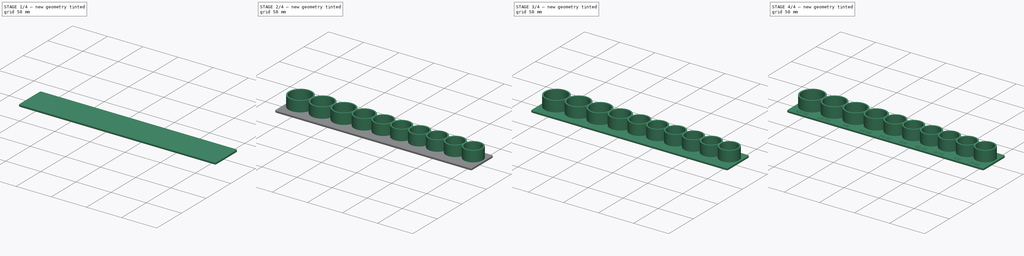
[diagram: build sequence overview — one tinted view per stage of 4, left to right]
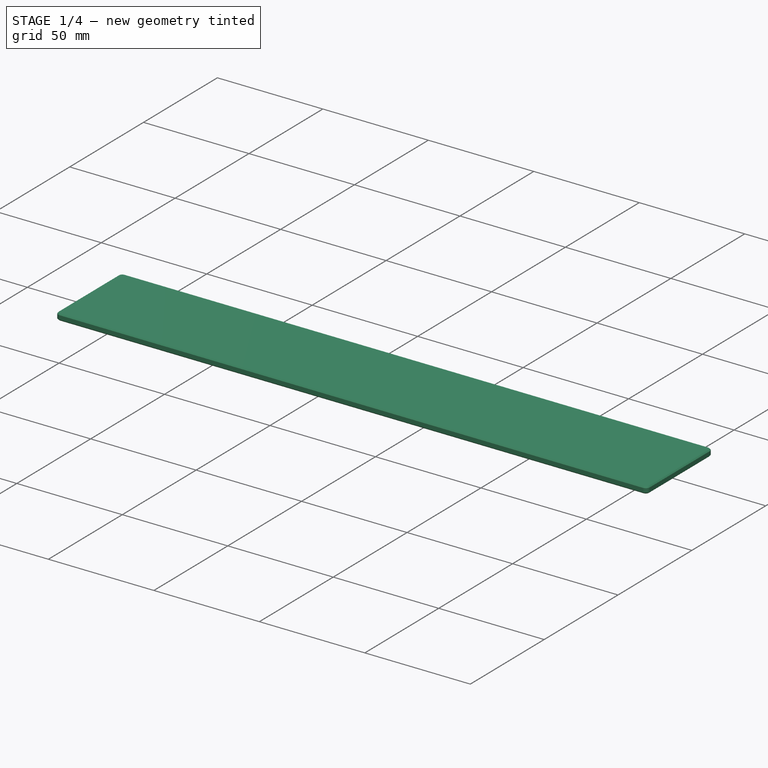
[diagram: stage 1 of 4 — iso view after this stage's code; geometry added in this stage tinted green]
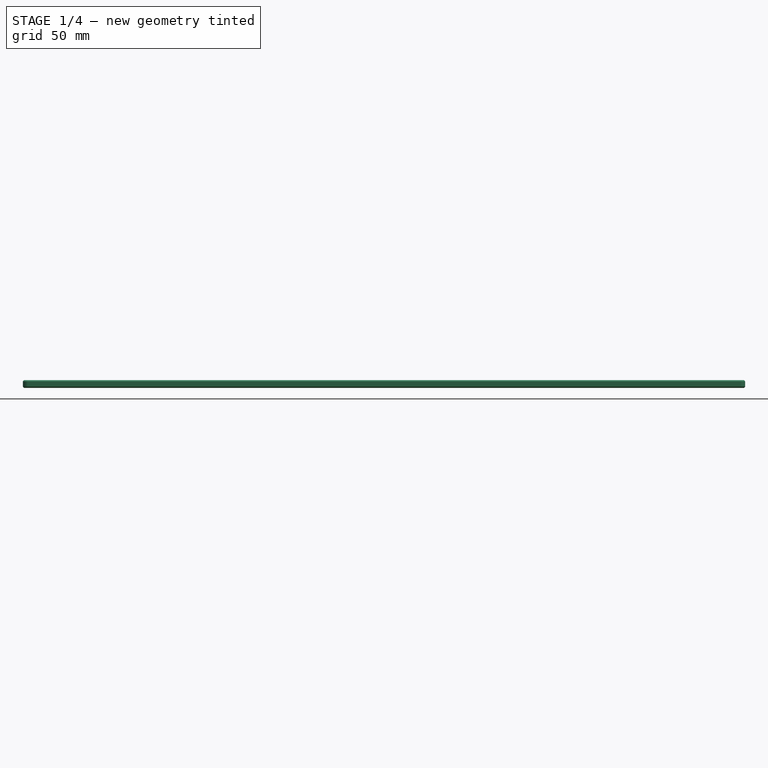
[diagram: stage 1 of 4 — front view after this stage's code; geometry added in this stage tinted green]
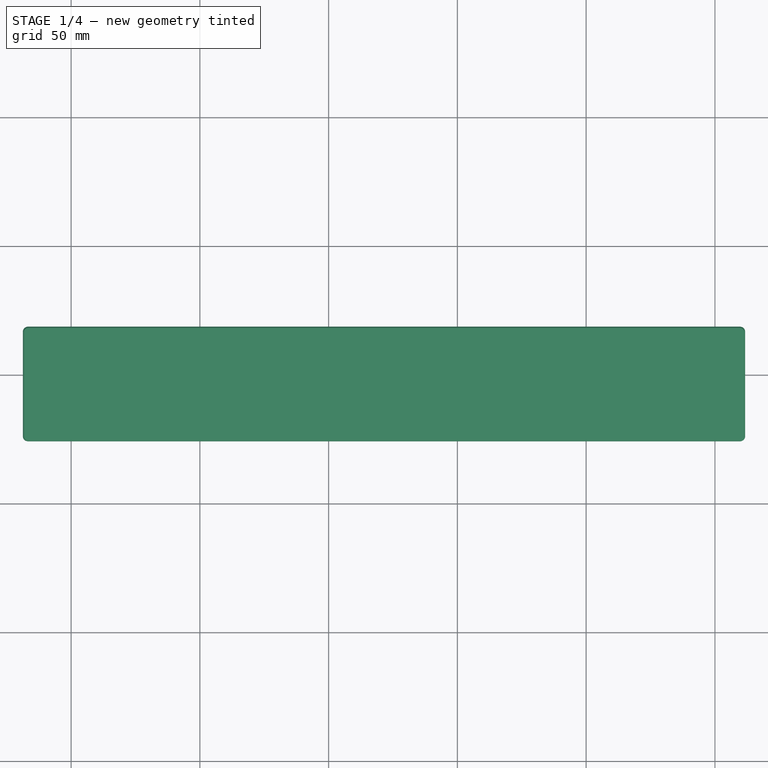
[diagram: stage 1 of 4 — top view after this stage's code; geometry added in this stage tinted green]
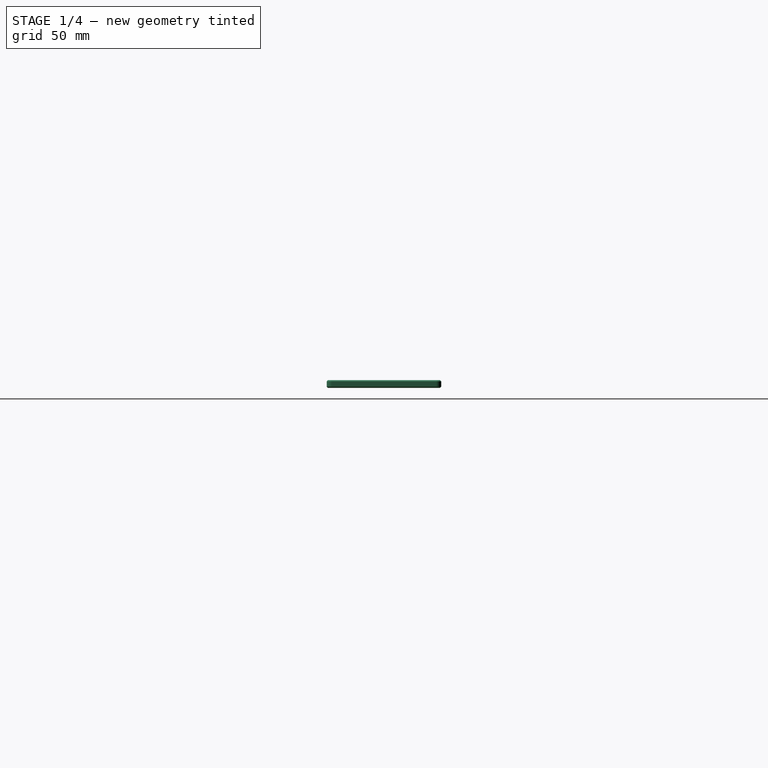
[diagram: stage 1 of 4 — right view after this stage's code; geometry added in this stage tinted green]
FCSTD DOCUMENT  (FreeCAD 0.22R38314 (Git))
Label: test
License: All rights reserved
LicenseURL: http://en.wikipedia.org/wiki/All_rights_reserved
objects: Part::Extrusion×3, Part::FeaturePython×3, Sketcher::SketchObject×2, Spreadsheet::Sheet×1, Part::Part2DObjectPython×1, Part::Chamfer×1, Part::MultiFuse×1, Part::Cut×1
note: 12 computed .brp shape members not serialized (recipe doc carries the construction recipe); baked Part::Feature solids carry a one-line shape summary decoded from their .brp

FEATURE [Part::Extrusion] Extrude003
  Base = -> Sketch001
  Dir = (0,0,1)
  DirMode = 2
  FaceMakerClass = Part::FaceMakerBullseye
  FaceMakerMode = 3
  LengthFwd = 3
  LengthRev = 0
  Reversed = true
  Solid = true
  Symmetric = false
  expr: LengthFwd = <<q>>.base_thickness
FEATURE [Part::Chamfer] Chamfer
  Base = -> Extrude003
  EdgeLinks = -> Extrude003 [Edge3,Edge4,Edge6,Edge7,Edge9,Edge10,Edge12,Edge13,Edge15,Edge16,Edge18,Edge19,Edge21,Edge22,Edge23,Edge24]
  Edges = 16 edges r=0.5: [Edge3,Edge4,Edge6,Edge7,Edge9,Edge10,Edge12,Edge13,Edge15,Edge16,Edge18,Edge19,Edge21,Edge22,Edge23,Edge24]
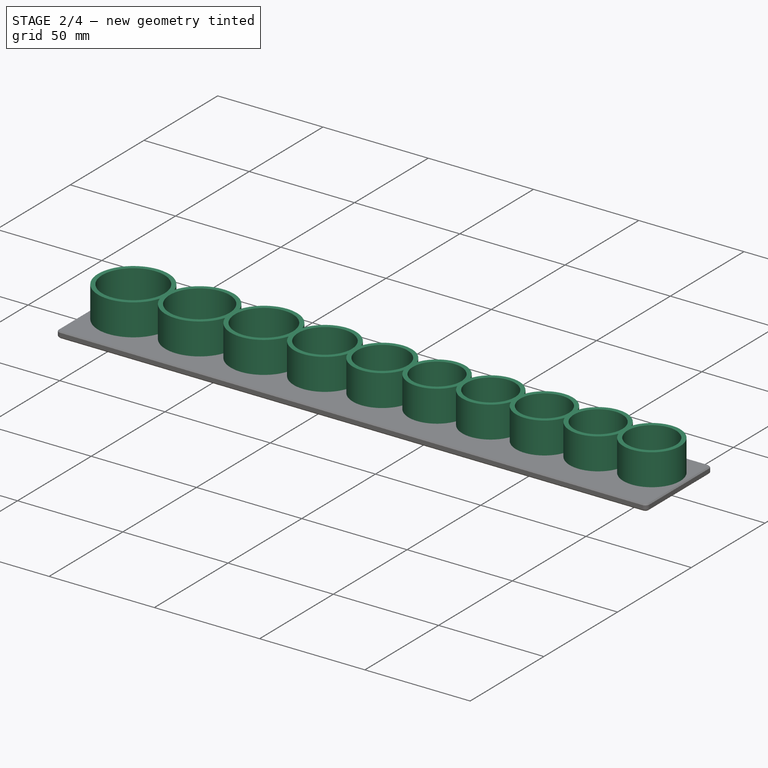
[diagram: stage 2 of 4 — iso view after this stage's code; geometry added in this stage tinted green]
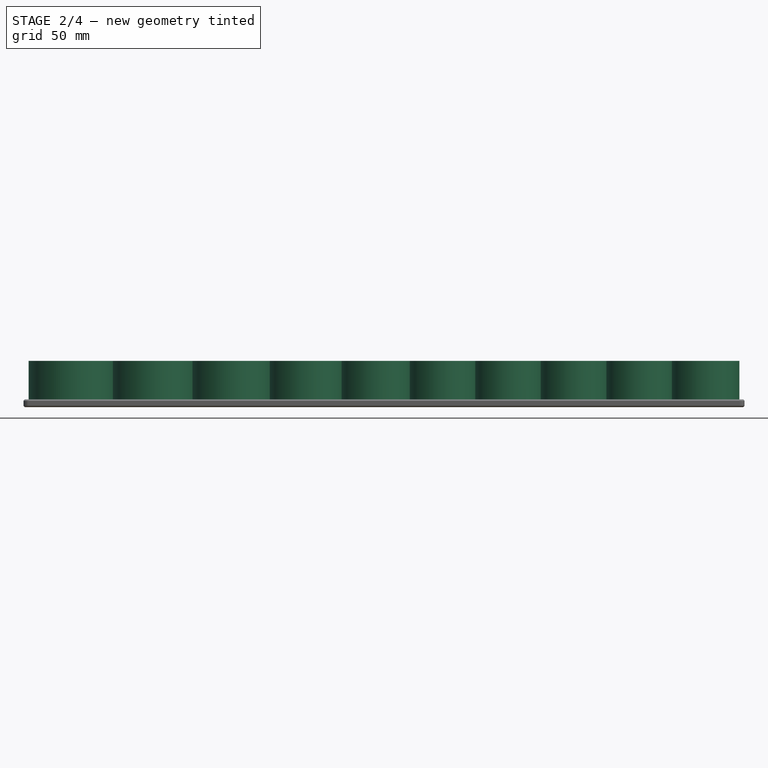
[diagram: stage 2 of 4 — front view after this stage's code; geometry added in this stage tinted green]
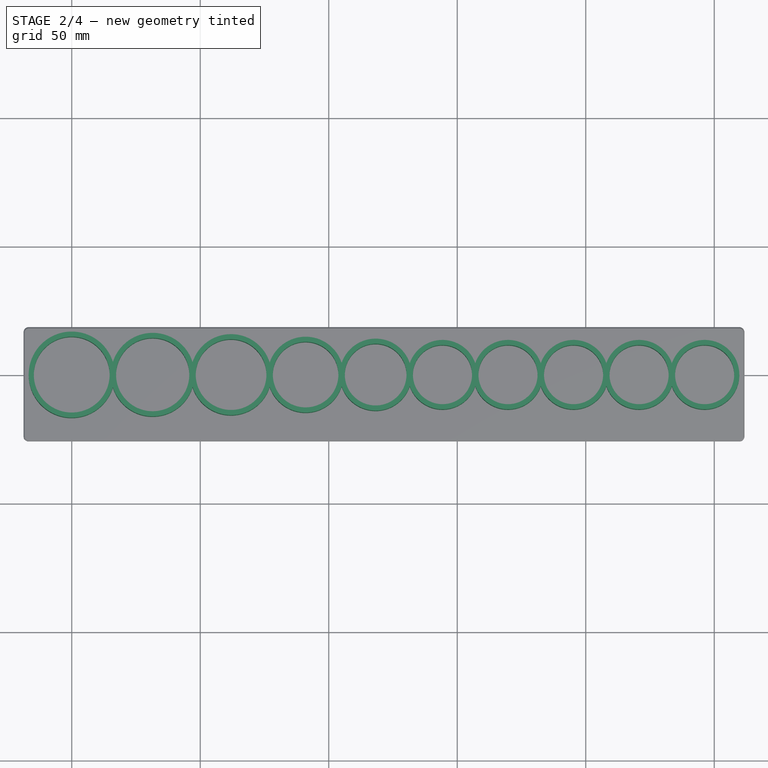
[diagram: stage 2 of 4 — top view after this stage's code; geometry added in this stage tinted green]
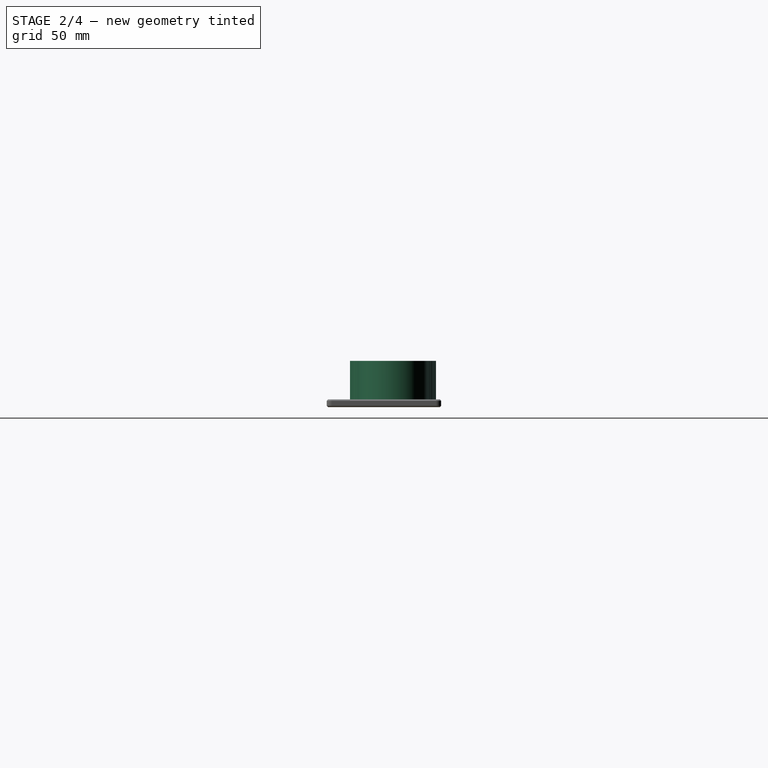
[diagram: stage 2 of 4 — right view after this stage's code; geometry added in this stage tinted green]
FEATURE [Spreadsheet::Sheet] Spreadsheet  label="q"
  cells = A1='socket diameter; B1='socket text; D1='socket para data; E1='text para data; G1='id; H1='od; I1='offset; A2=28.5; B2='13/16; D2==sum(A2:A2) > 0 ? <<%s;>> % I2 + <<%s;>> % G2 + <<%s>> % H2 : <<>>; E2==sum(A2:A2) > 0 ? <<%s;>> % I2 + <<%s>> % B2 : <<>>; G2==sum(A2:A2) > 0 ? A2 + socket_padding : 0; H2==sum(A2:A2) > 0 ? G2 + 2 * socket_wall : 0; I2=0; K2='socket wall; L2(socket_wall)=2; A3=27.5; B3='25/32; D3==sum(A3:A3) > 0 ? <<%s;>> % I3 + <<%s;>> % G3 + <<%s>> % H3 : <<>>; E3==sum(A3:A3) > 0 ? <<%s;>> % I3 + <<%s>> % B3 : <<>>; G3==sum(A3:A3) > 0 ? A3 + socket_padding : 0; H3==sum(A3:A3) > 0 ? G3 + 2 * socket_wall : 0; I3==sum(A3:A3) > 0 ? H2 / 2 + H3 / 2 + socket_spacing + I2 : 0; K3='socket height; L3(socket_height)=15; A4=26.5; B4='3/4; D4==sum(A4:A4) > 0 ? <<%s;>> % I4 + <<%s;>> % G4 + <<%s>> % H4 : <<>>; E4==sum(A4:A4) > 0 ? <<%s;>> % I4 + <<%s>> % B4 : <<>>; G4==sum(A4:A4) > 0 ? A4 + socket_padding : 0; H4==sum(A4:A4) > 0 ? G4 + 2 * socket_wall : 0; I4==sum(A4:A4) > 0 ? H3 / 2 + H4 / 2 + socket_spacing + I3 : 0; K4='socket padding; L4(socket_padding)=1; A5=24.5; B5='11/16; D5==sum(A5:A5) > 0 ? <<%s;>> % I5 + <<%s;>> % G5 + <<%s>> % H5 : <<>>; E5==sum(A5:A5) > 0 ? <<%s;>> % I5 + <<%s>> % B5 : <<>>; G5==sum(A5:A5) > 0 ? A5 + socket_padding : 0; H5==sum(A5:A5) > 0 ? G5 + 2 * socket_wall : 0; I5==sum(A5:A5) > 0 ? H4 / 2 + H5 / 2 + socket_spacing + I4 : 0; K5='socket spacing; L5(socket_spacing)=-1.5; A6=23; B6='21/32; D6==sum(A6:A6) > 0 ? <<%s;>> % I6 + <<%s;>> % G6 + <<%s>> % H6 : <<>>; E6==sum(A6:A6) > 0 ? <<%s;>> % I6 + <<%s>> % B6 : <<>>; G6==sum(A6:A6) > 0 ? A6 + socket_padding : 0; H6==sum(A6:A6) > 0 ? G6 + 2 * socket_wall : 0; I6==sum(A6:A6) > 0 ? H5 / 2 + H6 / 2 + socket_spacing + I5 : 0; A7=22; B7='5/8; D7==sum(A7:A7) > 0 ? <<%s;>> % I7 + <<%s;>> % G7 + <<%s>> % H7 : <<>>; E7==sum(A7:A7) > 0 ? <<%s;>> % I7 + <<%s>> % B7 : <<>>; G7==sum(A7:A7) > 0 ? A7 + socket_padding : 0; H7==sum(A7:A7) > 0 ? G7 + 2 * socket_wall : 0; I7==sum(A7:A7) > 0 ? H6 / 2 + H7 / 2 + socket_spacing + I6 : 0; K7='base spacing; L7(base_spacing)=2; A8=22; B8='19/32; D8==sum(A8:A8) > 0 ? <<%s;>> % I8 + <<%s;>> % G8 + <<%s>> % H8 : <<>>; E8==sum(A8:A8) > 0 ? <<%s;>> % I8 + <<%s>> % B8 : <<>>; G8==sum(A8:A8) > 0 ? A8 + socket_padding : 0; H8==sum(A8:A8) > 0 ? G8 + 2 * socket_wall : 0; I8==sum(A8:A8) > 0 ? H7 / 2 + H8 / 2 + socket_spacing + I7 : 0; K8='items; L8(items)==count($A2:$A30); A9=22; B9='9/16; D9==sum(A9:A9) > 0 ? <<%s;>> % I9 + <<%s;>> % G9 + <<%s>> % H9 : <<>>; E9==sum(A9:A9) > 0 ? <<%s;>> % I9 + <<%s>> % B9 : <<>>; G9==sum(A9:A9) > 0 ? A9 + socket_padding : 0; H9==sum(A9:A9) > 0 ? G9 + 2 * socket_wall : 0; I9==sum(A9:A9) > 0 ? H8 / 2 + H9 / 2 + socket_spacing + I8 : 0; K9='base length; L9(base_length)==sum($H2:$H30) + (items - 1) * socket_spacing + 2 * base_spacing; A10=22; B10='1/2; D10==sum(A10:A10) > 0 ? <<%s;>> % I10 + <<%s;>> % G10 + <<%s>> % H10 : <<>>; E10==sum(A10:A10) > 0 ? <<%s;>> % I10 + <<%s>> % B10 : <<>>; G10==sum(A10:A10) > 0 ? A10 + socket_padding : 0; H10==sum(A10:A10) > 0 ? G10 + 2 * socket_wall : 0; I10==sum(A10:A10) > 0 ? H9 / 2 + H10 / 2 + socket_spacing + I9 : 0; K10='base height; L10(base_height)==max($H2:$H30) + 3 * base_spacing + text_height; A11=22; B11='7/16; D11==sum(A11:A11) > 0 ? <<%s;>> % I11 + <<%s;>> % G11 + <<%s>> % H11 : <<>>; E11==sum(A11:A11) > 0 ? <<%s;>> % I11 + <<%s>> % B11 : <<>>; G11==sum(A11:A11) > 0 ? A11 + socket_padding : 0; H11==sum(A11:A11) > 0 ? G11 + 2 * socket_wall : 0; I11==sum(A11:A11) > 0 ? H10 / 2 + H11 / 2 + socket_spacing + I10 : 0; K11='text height; L11(text_height)=5; D12==sum(A12:A12) > 0 ? <<%s;>> % I12 + <<%s;>> % G12 + <<%s>> % H12 : <<>>; E12==sum(A12:A12) > 0 ? <<%s;>> % I12 + <<%s>> % B12 : <<>>; G12==sum(A12:A12) > 0 ? A12 + socket_padding : 0; H12==sum(A12:A12) > 0 ? G12 + 2 * socket_wall : 0; I12==sum(A12:A12) > 0 ? H11 / 2 + H12 / 2 + socket_spacing + I11 : 0; K12='base left xy; L12(base_left_xy)==max($H2:$H30) / 2 + base_spacing; D13==sum(A13:A13) > 0 ? <<%s;>> % I13 + <<%s;>> % G13 + <<%s>> % H13 : <<>>; E13==sum(A13:A13) > 0 ? <<%s;>> % I13 + <<%s>> % B13 : <<>>; G13==sum(A13:A13) > 0 ? A13 + socket_padding : 0; H13==sum(A13:A13) > 0 ? G13 + 2 * socket_wall : 0; I13==sum(A13:A13) > 0 ? H12 / 2 + H13 / 2 + socket_spacing + I12 : 0; K13='base corner radius; L13(base_corner_radius)=2; D14==sum(A14:A14) > 0 ? <<%s;>> % I14 + <<%s;>> % G14 + <<%s>> % H14 : <<>>; E14==sum(A14:A14) > 0 ? <<%s;>> % I14 + <<%s>> % B14 : <<>>; G14==sum(A14:A14) > 0 ? A14 + socket_padding : 0; H14==sum(A14:A14) > 0 ? G14 + 2 * socket_wall : 0; I14==sum(A14:A14) > 0 ? H13 / 2 + H14 / 2 + socket_spacing + I13 : 0; K14='base thickness; L14(base_thickness)=3; D15==sum(A15:A15) > 0 ? <<%s;>> % I15 + <<%s;>> % G15 + <<%s>> % H15 : <<>>; E15==sum(A15:A15) > 0 ? <<%s;>> % I15 + <<%s>> % B15 : <<>>; G15==sum(A15:A15) > 0 ? A15 + socket_padding : 0; H15==sum(A15:A15) > 0 ? G15 + 2 * socket_wall : 0; I15==sum(A15:A15) > 0 ? H14 / 2 + H15 / 2 + socket_spacing + I14 : 0; K15='text y offset; L15(text_y_offset)==-(max($H2:$H30) / 2 + base_spacing); D16==sum(A16:A16) > 0 ? <<%s;>> % I16 + <<%s;>> % G16 + <<%s>> % H16 : <<>>; E16==sum(A16:A16) > 0 ? <<%s;>> % I16 + <<%s>> % B16 : <<>>; G16==sum(A16:A16) > 0 ? A16 + socket_padding : 0; H16==sum(A16:A16) > 0 ? G16 + 2 * socket_wall : 0; I16==sum(A16:A16) > 0 ? H15 / 2 + H16 / 2 + socket_spacing + I15 : 0; K16='text depth; L16(text_depth)=0.5; D17==sum(A17:A17) > 0 ? <<%s;>> % I17 + <<%s;>> % G17 + <<%s>> % H17 : <<>>; E17==sum(A17:A17) > 0 ? <<%s;>> % I17 + <<%s>> % B17 : <<>>; G17==sum(A17:A17) > 0 ? A17 + socket_padding : 0; H17==sum(A17:A17) > 0 ? G17 + 2 * socket_wall : 0; I17==sum(A17:A17) > 0 ? H16 / 2 + H17 / 2 + socket_spacing + I16 : 0; D18==sum(A18:A18) > 0 ? <<%s;>> % I18 + <<%s;>> % G18 + <<%s>> % H18 : <<>>; E18==sum(A18:A18) > 0 ? <<%s;>> % I18 + <<%s>> % B18 : <<>>; G18==sum(A18:A18) > 0 ? A18 + socket_padding : 0; H18==sum(A18:A18) > 0 ? G18 + 2 * socket_wall : 0; I18==sum(A18:A18) > 0 ? H17 / 2 + H18 / 2 + socket_spacing + I17 : 0; D19==sum(A19:A19) > 0 ? <<%s;>> % I19 + <<%s;>> % G19 + <<%s>> % H19 : <<>>; E19==sum(A19:A19) > 0 ? <<%s;>> % I19 + <<%s>> % B19 : <<>>; G19==sum(A19:A19) > 0 ? A19 + socket_padding : 0; H19==sum(A19:A19) > 0 ? G19 + 2 * socket_wall : 0; I19==sum(A19:A19) > 0 ? H18 / 2 + H19 / 2 + socket_spacing + I18 : 0; D20==sum(A20:A20) > 0 ? <<%s;>> % I20 + <<%s;>> % G20 + <<%s>> % H20 : <<>>; E20==sum(A20:A20) > 0 ? <<%s;>> % I20 + <<%s>> % B20 : <<>>; G20==sum(A20:A20) > 0 ? A20 + socket_padding : 0; H20==sum(A20:A20) > 0 ? G20 + 2 * socket_wall : 0; I20==sum(A20:A20) > 0 ? H19 / 2 + H20 / 2 + socket_spacing + I19 : 0; D21==sum(A21:A21) > 0 ? <<%s;>> % I21 + <<%s;>> % G21 + <<%s>> % H21 : <<>>; E21==sum(A21:A21) > 0 ? <<%s;>> % I21 + <<%s>> % B21 : <<>>; G21==sum(A21:A21) > 0 ? A21 + socket_padding : 0; H21==sum(A21:A21) > 0 ? G21 + 2 * socket_wall : 0; I21==sum(A21:A21) > 0 ? H20 / 2 + H21 / 2 + socket_spacing + I20 : 0; D22==sum(A22:A22) > 0 ? <<%s;>> % I22 + <<%s;>> % G22 + <<%s>> % H22 : <<>>; E22==sum(A22:A22) > 0 ? <<%s;>> % I22 + <<%s>> % B22 : <<>>; G22==sum(A22:A22) > 0 ? A22 + socket_padding : 0; H22==sum(A22:A22) > 0 ? G22 + 2 * socket_wall : 0; I22==sum(A22:A22) > 0 ? H21 / 2 + H22 / 2 + socket_spacing + I21 : 0; D23==sum(A23:A23) > 0 ? <<%s;>> % I23 + <<%s;>> % G23 + <<%s>> % H23 : <<>>; E23==sum(A23:A23) > 0 ? <<%s;>> % I23 + <<%s>> % B23 : <<>>; G23==sum(A23:A23) > 0 ? A23 + socket_padding : 0; H23==sum(A23:A23) > 0 ? G23 + 2 * socket_wall : 0; I23==sum(A23:A23) > 0 ? H22 / 2 + H23 / 2 + socket_spacing + I22 : 0; D24==sum(A24:A24) > 0 ? <<%s;>> % I24 + <<%s;>> % G24 + <<%s>> % H24 : <<>>; E24==sum(A24:A24) > 0 ? <<%s;>> % I24 + <<%s>> % B24 : <<>>; G24==sum(A24:A24) > 0 ? A24 + socket_padding : 0; H24==sum(A24:A24) > 0 ? G24 + 2 * socket_wall : 0; I24==sum(A24:A24) > 0 ? H23 / 2 + H24 / 2 + socket_spacing + I23 : 0; D25==sum(A25:A25) > 0 ? <<%s;>> % I25 + <<%s;>> % G25 + <<%s>> % H25 : <<>>; E25==sum(A25:A25) > 0 ? <<%s;>> % I25 + <<%s>> % B25 : <<>>; G25==sum(A25:A25) > 0 ? A25 + socket_padding : 0; H25==sum(A25:A25) > 0 ? G25 + 2 * socket_wall : 0; I25==sum(A25:A25) > 0 ? H24 / 2 + H25 / 2 + socket_spacing + I24 : 0; D26==sum(A26:A26) > 0 ? <<%s;>> % I26 + <<%s;>> % G26 + <<%s>> % H26 : <<>>; E26==sum(A26:A26) > 0 ? <<%s;>> % I26 + <<%s>> % B26 : <<>>; G26==sum(A26:A26) > 0 ? A26 + socket_padding : 0; H26==sum(A26:A26) > 0 ? G26 + 2 * socket_wall : 0; I26==sum(A26:A26) > 0 ? H25 / 2 + H26 / 2 + socket_spacing + I25 : 0; D27==sum(A27:A27) > 0 ? <<%s;>> % I27 + <<%s;>> % G27 + <<%s>> % H27 : <<>>; E27==sum(A27:A27) > 0 ? <<%s;>> % I27 + <<%s>> % B27 : <<>>; G27==sum(A27:A27) > 0 ? A27 + socket_padding : 0; H27==sum(A27:A27) > 0 ? G27 + 2 * socket_wall : 0; I27==sum(A27:A27) > 0 ? H26 / 2 + H27 / 2 + socket_spacing + I26 : 0; D28==sum(A28:A28) > 0 ? <<%s;>> % I28 + <<%s;>> % G28 + <<%s>> % H28 : <<>>; E28==sum(A28:A28) > 0 ? <<%s;>> % I28 + <<%s>> % B28 : <<>>; G28==sum(A28:A28) > 0 ? A28 + socket_padding : 0; H28==sum(A28:A28) > 0 ? G28 + 2 * socket_wall : 0; I28==sum(A28:A28) > 0 ? H27 / 2 + H28 / 2 + socket_spacing + I27 : 0; D29==sum(A29:A29) > 0 ? <<%s;>> % I29 + <<%s;>> % G29 + <<%s>> % H29 : <<>>; E29==sum(A29:A29) > 0 ? <<%s;>> % I29 + <<%s>> % B29 : <<>>; G29==sum(A29:A29) > 0 ? A29 + socket_padding : 0; H29==sum(A29:A29) > 0 ? G29 + 2 * socket_wall : 0; I29==sum(A29:A29) > 0 ? H28 / 2 + H29 / 2 + socket_spacing + I28 : 0; D30==sum(A30:A30) > 0 ? <<%s;>> % I30 + <<%s;>> % G30 + <<%s>> % H30 : <<>>; E30==sum(A30:A30) > 0 ? <<%s;>> % I30 + <<%s>> % B30 : <<>>; G30==sum(A30:A30) > 0 ? A30 + socket_padding : 0; H30==sum(A30:A30) > 0 ? G30 + 2 * socket_wall : 0; I30==sum(A30:A30) > 0 ? H29 / 2 + H30 / 2 + socket_spacing + I29 : 0
FEATURE [Sketcher::SketchObject] Sketch
  FullyConstrained = true
  sketch-geometry (2):
    g0: Circle CenterX=0 CenterY=0 CenterZ=0 NormalX=0 NormalY=0 NormalZ=1 AngleXU=0 Radius=4.875
    g1: Circle CenterX=0 CenterY=0 CenterZ=0 NormalX=0 NormalY=0 NormalZ=1 AngleXU=0 Radius=11.515
  constraints (4):
    c: Coincident(g0,g-1)
    c: Diameter(g0) = 9.75  'ID'
    c: Coincident(g1,g0)
    c: Diameter(g1) = 23.03  'OD'
FEATURE [Part::Extrusion] Extrude
  Base = -> Sketch
  Dir = (0,0,1)
  DirMode = 2
  FaceMakerClass = Part::FaceMakerBullseye
  FaceMakerMode = 3
  LengthFwd = 15
  LengthRev = 0
  Solid = true
  Symmetric = false
  expr: LengthFwd = <<q>>.socket_height
FEATURE [Part::FeaturePython] ParaSeries  # WARN: FeaturePython — macro-defined, semantics opaque (R4)
  Alignment = 0
  CellStart = D2
  Count = 7
  DistributionLaw = 0
  EndInclusive = true
  ExposePlacement = false
  GeneratorMode = 0
  MarkerShape = 1
  MarkerSize = 0
  NumElements = 0
  Object = -> Extrude
  ParameterRef = Sketch.Placement.Base.x;Sketch.Constraints.ID;Sketch.Constraints.OD
  ParameterType = 0
  Recomputing = 0
  SpanEnd = 7
  SpanStart = 1
  SpreadsheetLink = -> Spreadsheet
  Step = 1
  Type = lattice2ParaSeries.LatticeParaSeries
  VSGVersion = 1
  Values = 0;29.5;33.5 | 31.5;28.5;32.5 | 62;27.5;31.5 | 91;25.5;29.5 | 118.25;24;28 | 144.25;23;27 | 169.75;23;27 | 195.25;23;27 | 220.75;23;27 | 246.25;23;27
  ValuesSource = 1
  isLattice = 0
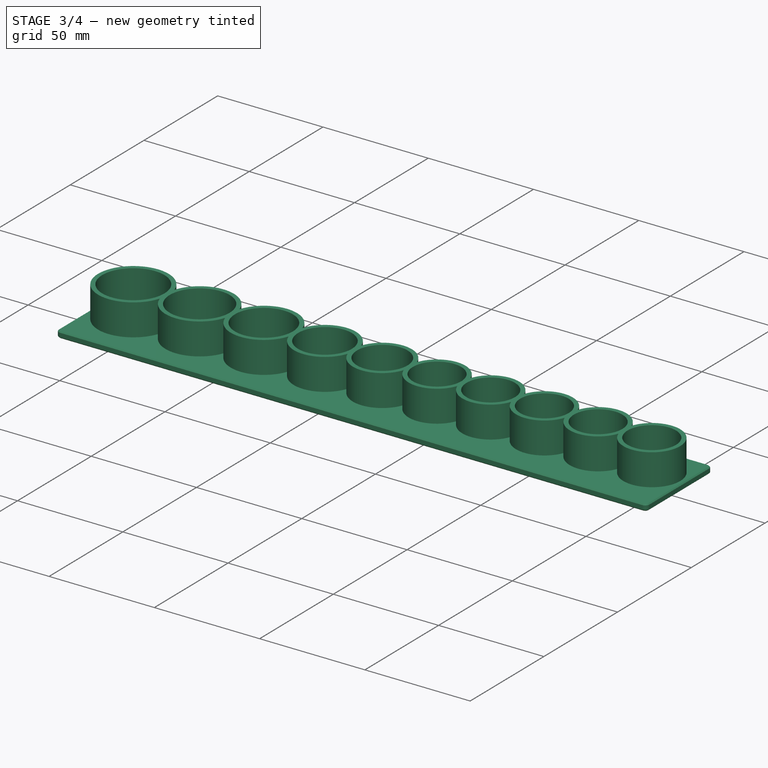
[diagram: stage 3 of 4 — iso view after this stage's code; geometry added in this stage tinted green]
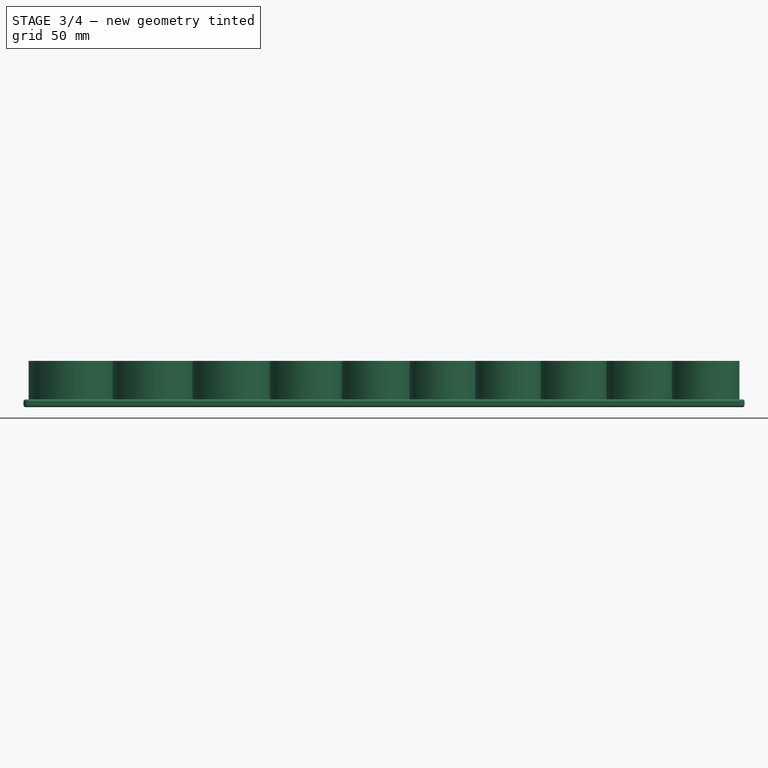
[diagram: stage 3 of 4 — front view after this stage's code; geometry added in this stage tinted green]
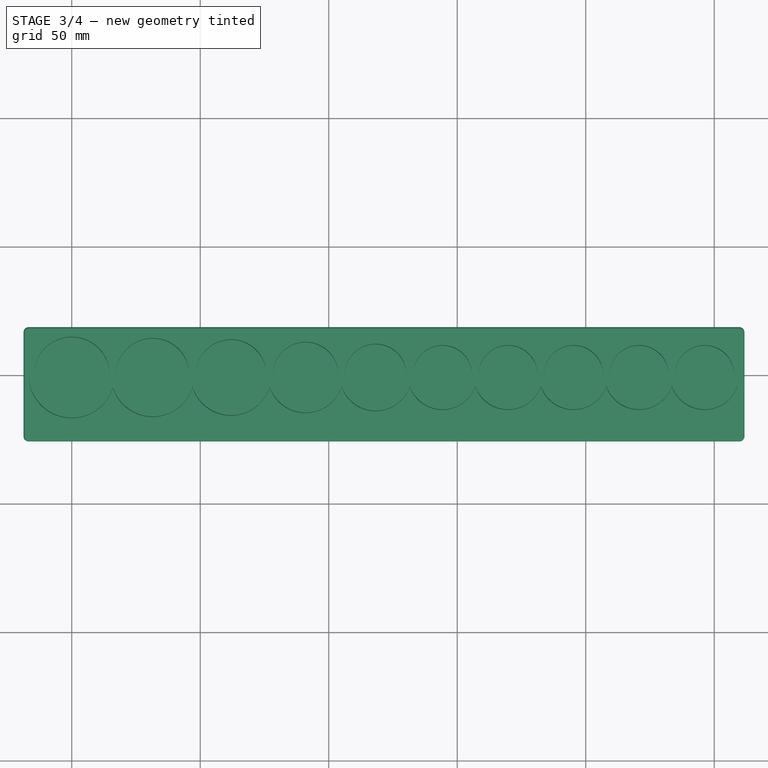
[diagram: stage 3 of 4 — top view after this stage's code; geometry added in this stage tinted green]
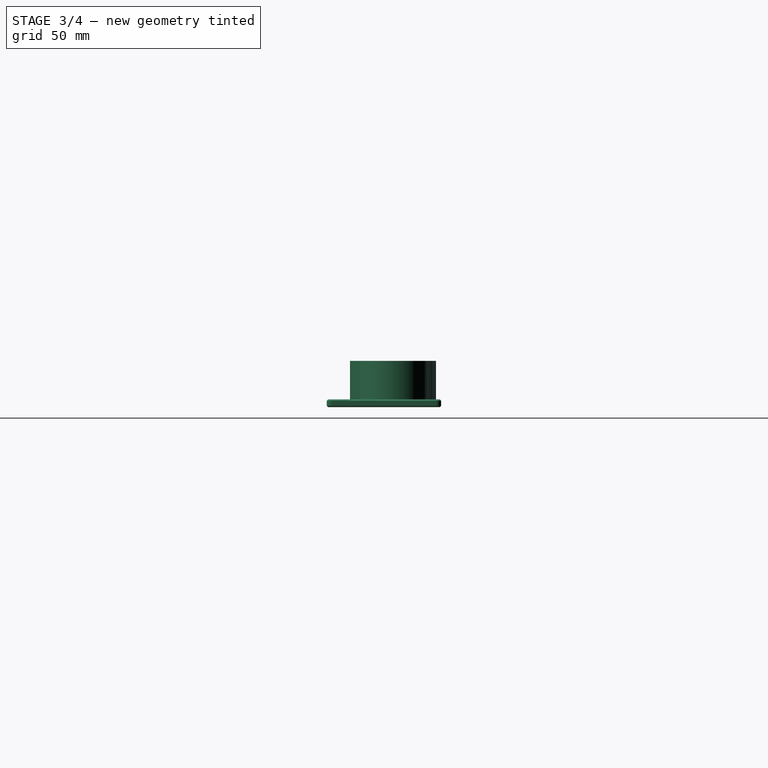
[diagram: stage 3 of 4 — right view after this stage's code; geometry added in this stage tinted green]
FEATURE [Sketcher::SketchObject] Sketch001
  FullyConstrained = true
  expr: Constraints[27] = <<q>>.base_corner_radius
  expr: Constraints[4] = <<q>>.base_left_xy
  expr: Constraints[5] = <<q>>.base_left_xy
  expr: Constraints[6] = <<q>>.base_height
  expr: Constraints[7] = <<q>>.base_length
  sketch-geometry (12):
    g0: LineSegment StartX=-18.75 StartY=16.75 StartZ=0 EndX=-18.75 EndY=-23.75 EndZ=0
    g1: LineSegment StartX=-16.75 StartY=-25.75 StartZ=0 EndX=259.75 EndY=-25.75 EndZ=0
    g2: LineSegment StartX=261.75 StartY=-23.75 StartZ=0 EndX=261.75 EndY=16.75 EndZ=0
    g3: LineSegment StartX=259.75 StartY=18.75 StartZ=0 EndX=-16.75 EndY=18.75 EndZ=0
    g4: ArcOfCircle CenterX=-16.75 CenterY=16.75 CenterZ=0 NormalX=0 NormalY=0 NormalZ=1 AngleXU=0 Radius=2 StartAngle=1.5708 EndAngle=3.14159
    g5: GeomPoint X=-18.75 Y=18.75 Z=0
    g6: ArcOfCircle CenterX=-16.75 CenterY=-23.75 CenterZ=0 NormalX=0 NormalY=0 NormalZ=1 AngleXU=0 Radius=2 StartAngle=3.14159 EndAngle=4.71239
    g7: GeomPoint X=-18.75 Y=-25.75 Z=0
    g8: ArcOfCircle CenterX=259.75 CenterY=-23.75 CenterZ=0 NormalX=0 NormalY=0 NormalZ=1 AngleXU=0 Radius=2 StartAngle=4.71239 EndAngle=6.28319
    g9: GeomPoint X=261.75 Y=-25.75 Z=0
    g10: ArcOfCircle CenterX=259.75 CenterY=16.75 CenterZ=0 NormalX=0 NormalY=0 NormalZ=1 AngleXU=0 Radius=2 StartAngle=-9e-16 EndAngle=1.5708
    g11: GeomPoint X=261.75 Y=18.75 Z=0
  constraints (28):
    c: Vertical(g0)
    c: Vertical(g2)
    c: Horizontal(g1)
    c: Horizontal(g3)
    c: DistanceX(g5,g-1) = 18.75
    c: DistanceY(g-1,g5) = 18.75
    c: DistanceY(g7,g5) = 44.5
    c: DistanceX(g7,g9) = 280.5
    c: PointOnObject(g5,g3)
    c: PointOnObject(g5,g0)
    c: Tangent(g3,g4) = -1.5708
    c: Tangent(g0,g4) = -1.5708
    c: PointOnObject(g7,g0)
    c: PointOnObject(g7,g1)
    c: Tangent(g0,g6) = -1.5708
    c: Tangent(g1,g6) = -1.5708
    c: PointOnObject(g9,g1)
    c: PointOnObject(g9,g2)
    c: Tangent(g1,g8) = -1.5708
    c: Tangent(g2,g8) = -1.5708
    c: PointOnObject(g11,g2)
    c: PointOnObject(g11,g3)
    c: Tangent(g2,g10) = -1.5708
    c: Tangent(g3,g10) = -1.5708
    c: Equal(g4,g6)
    c: Equal(g4,g8)
    c: Equal(g4,g10)
    c: Radius(g4) = 2
FEATURE [Part::Part2DObjectPython] ShapeString  # Draft 2D object (typed FeaturePython)
  FontFile = /System/Library/Fonts/Supplemental/Arial.ttf
  Fuse = false
  Justification = 1
  JustificationReference = 0
  KeepLeftMargin = false
  MakeFace = true
  ObliqueAngle = 0
  Placement = pos=(0,-18.75,0) rot=(0,0,1;0rad)
  ScaleToSize = true
  Size = 5
  String = 1-1/4
  Tracking = 0
  expr: .Placement.Base.y = <<q>>.text_y_offset
  expr: Size = <<q>>.text_height
FEATURE [Part::Extrusion] Extrude002
  Base = -> ShapeString
  Dir = (0,0,1)
  DirMode = 2
  FaceMakerClass = Part::FaceMakerBullseye
  FaceMakerMode = 3
  LengthFwd = 0.5
  LengthRev = 0
  Reversed = true
  Solid = false
  Symmetric = false
  expr: LengthFwd = <<q>>.text_depth
FEATURE [Part::FeaturePython] Connect  # WARN: FeaturePython — macro-defined, semantics opaque (R4)
  Objects = -> [ParaSeries]
  Tolerance = 0
FEATURE [Part::MultiFuse] Fusion
  Shapes = -> [Chamfer,Connect]
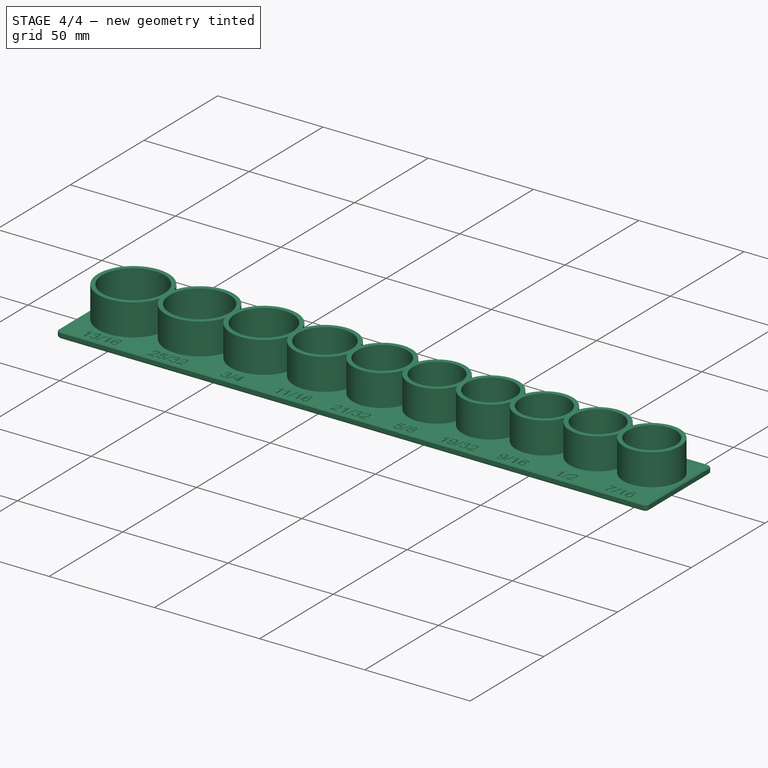
[diagram: stage 4 of 4 — iso view after this stage's code; geometry added in this stage tinted green]
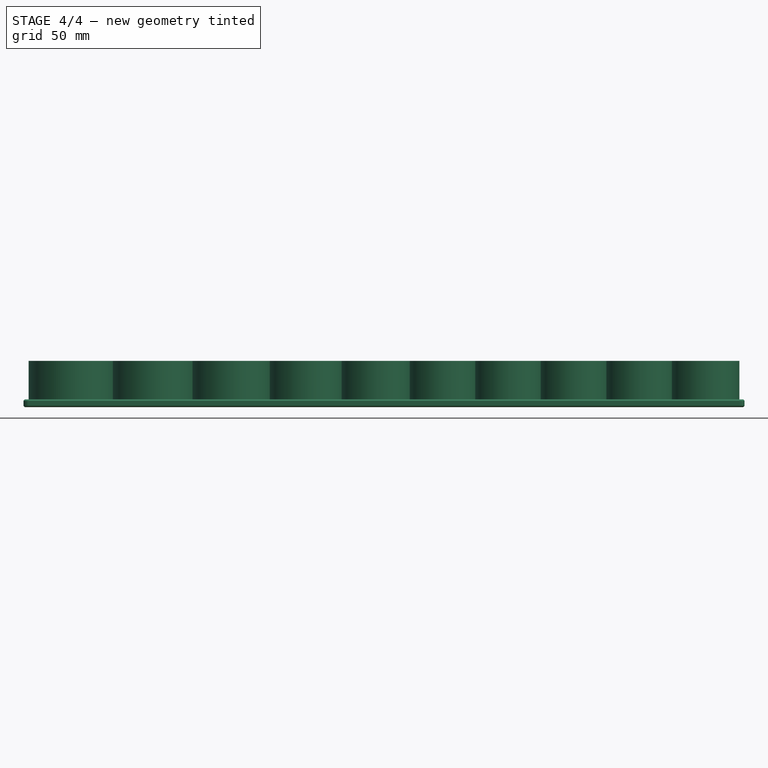
[diagram: stage 4 of 4 — front view after this stage's code; geometry added in this stage tinted green]
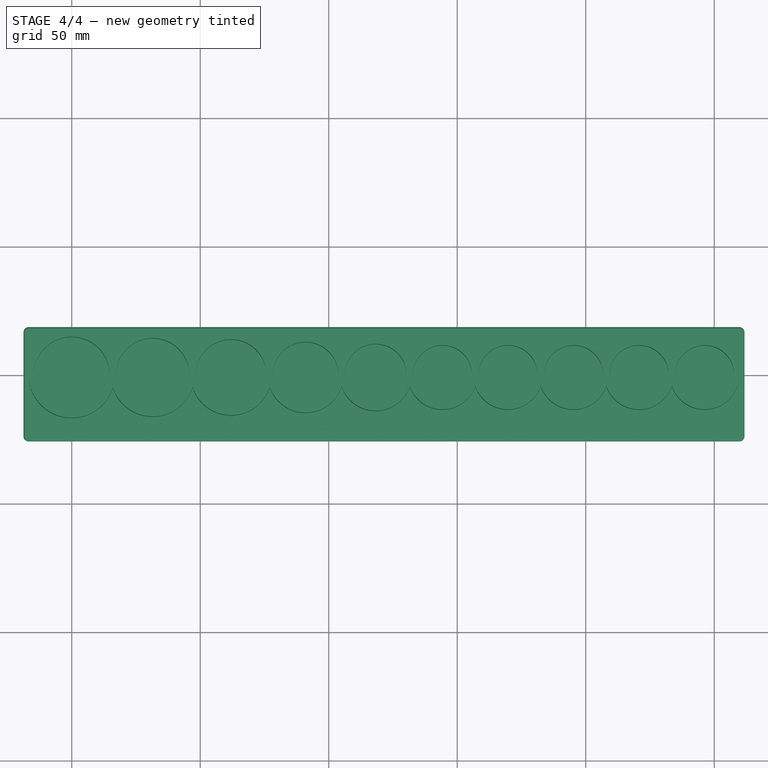
[diagram: stage 4 of 4 — top view after this stage's code; geometry added in this stage tinted green]
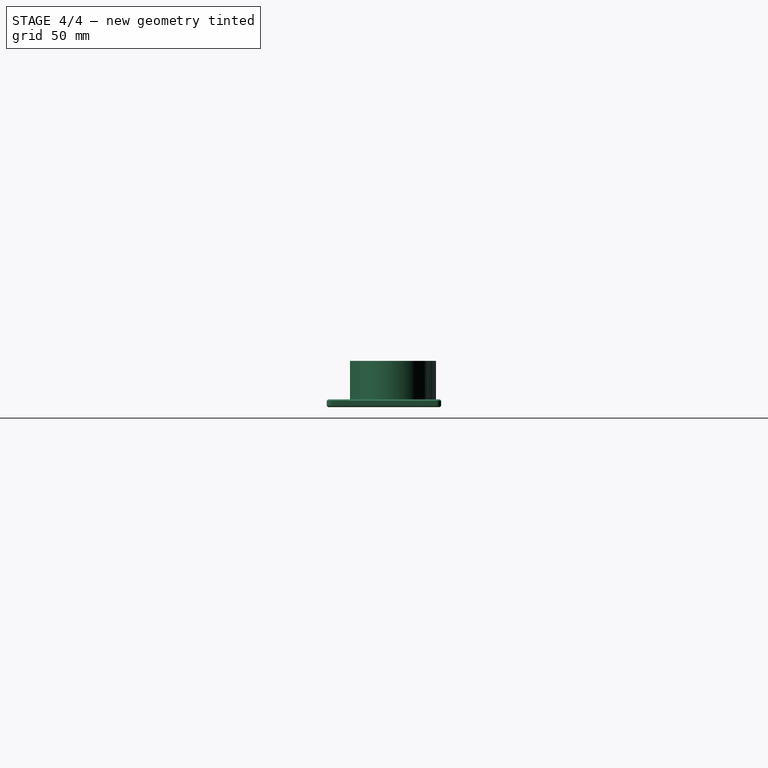
[diagram: stage 4 of 4 — right view after this stage's code; geometry added in this stage tinted green]
FEATURE [Part::FeaturePython] ParaSeries001  # WARN: FeaturePython — macro-defined, semantics opaque (R4)
  Alignment = 0
  CellStart = E2
  Count = 7
  DistributionLaw = 0
  EndInclusive = true
  ExposePlacement = false
  GeneratorMode = 0
  MarkerShape = 1
  MarkerSize = 0
  NumElements = 0
  Object = -> Extrude002
  ParameterRef = ShapeString.Placement.Base.x;ShapeString.String
  ParameterType = 2
  Recomputing = 0
  SpanEnd = 7
  SpanStart = 1
  SpreadsheetLink = -> Spreadsheet
  Step = 1
  Type = lattice2ParaSeries.LatticeParaSeries
  VSGVersion = 1
  Values = 0;13/16 | 31.5;25/32 | 62;3/4 | 91;11/16 | 118.25;21/32 | 144.25;5/8 | 169.75;19/32 | 195.25;9/16 | 220.75;1/2 | 246.25;7/16
  ValuesSource = 1
  isLattice = 0
FEATURE [Part::Cut] Cut
  Base = -> Fusion
  Tool = -> ParaSeries001
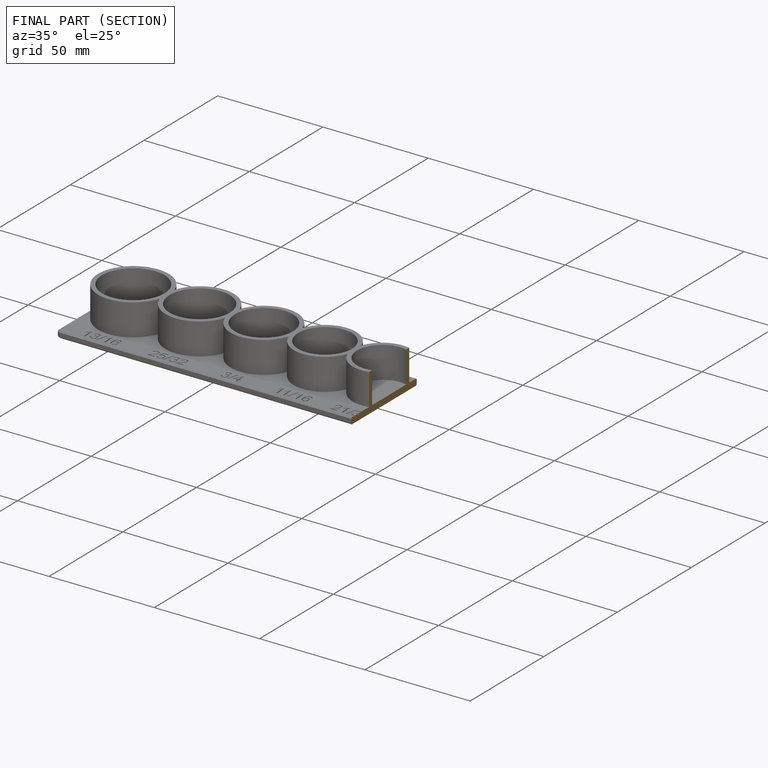
[diagram: finished part — half-section view (interior)]
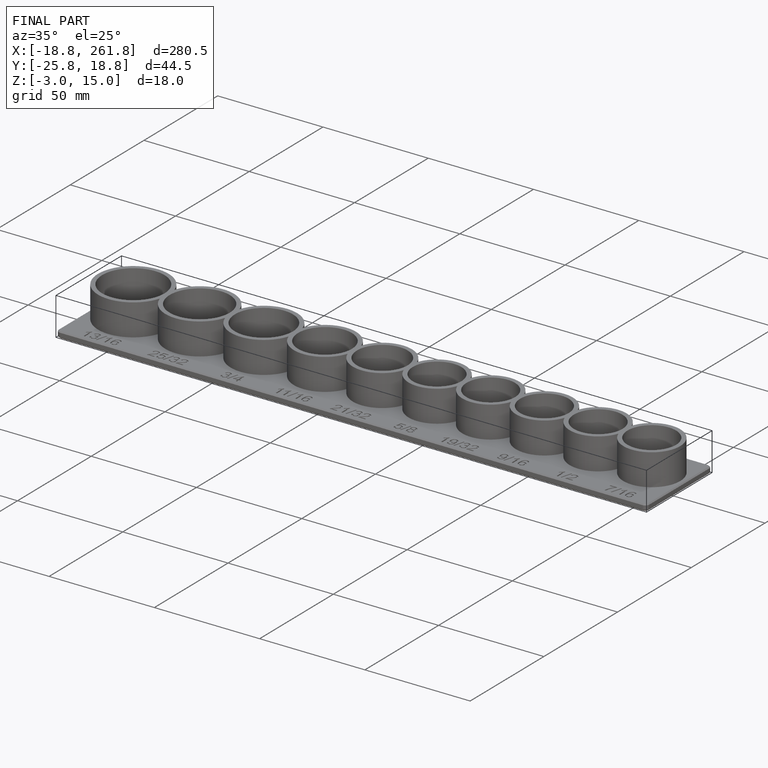
[diagram: finished part — iso view with bounding-box wireframe]
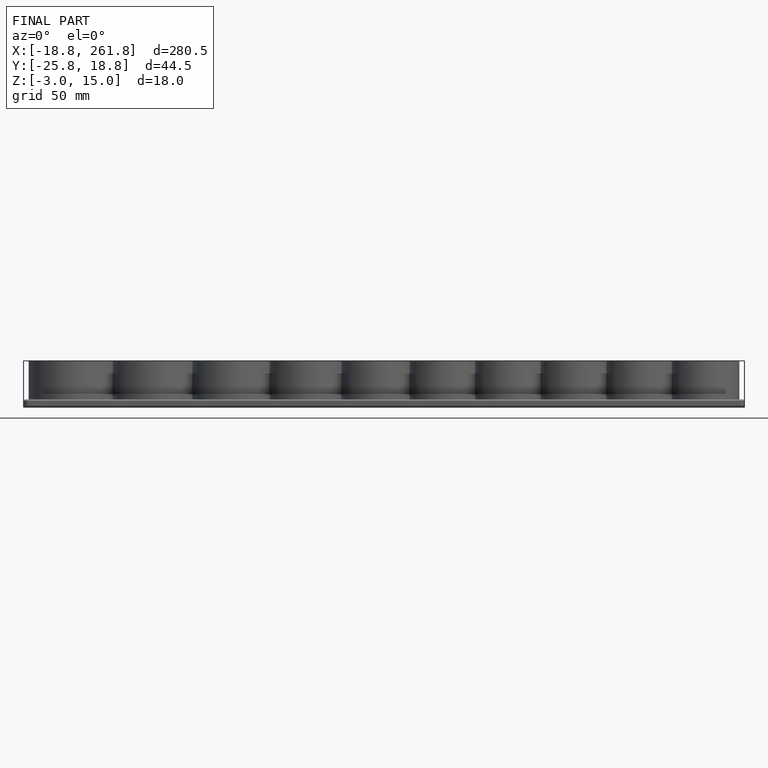
[diagram: finished part — front view with bounding-box wireframe]
